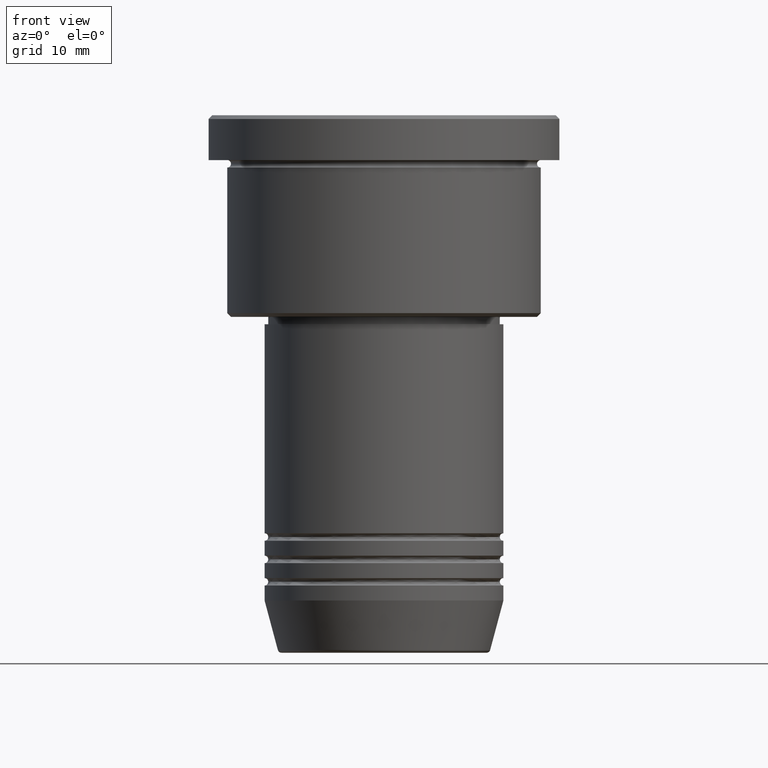
[diagram: clean part render]
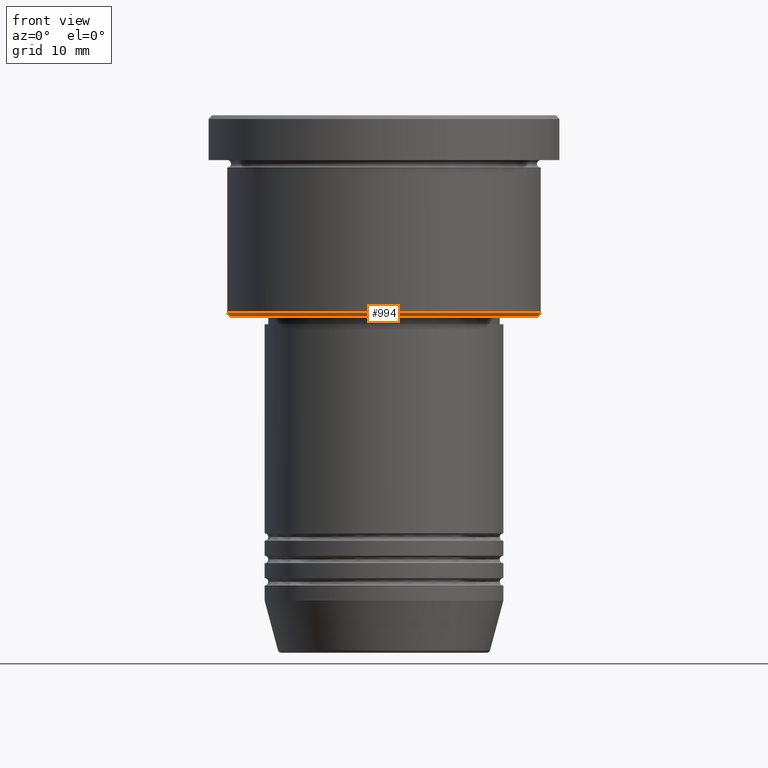
[diagram: same view with one face highlighted and labeled with its STEP entity id]
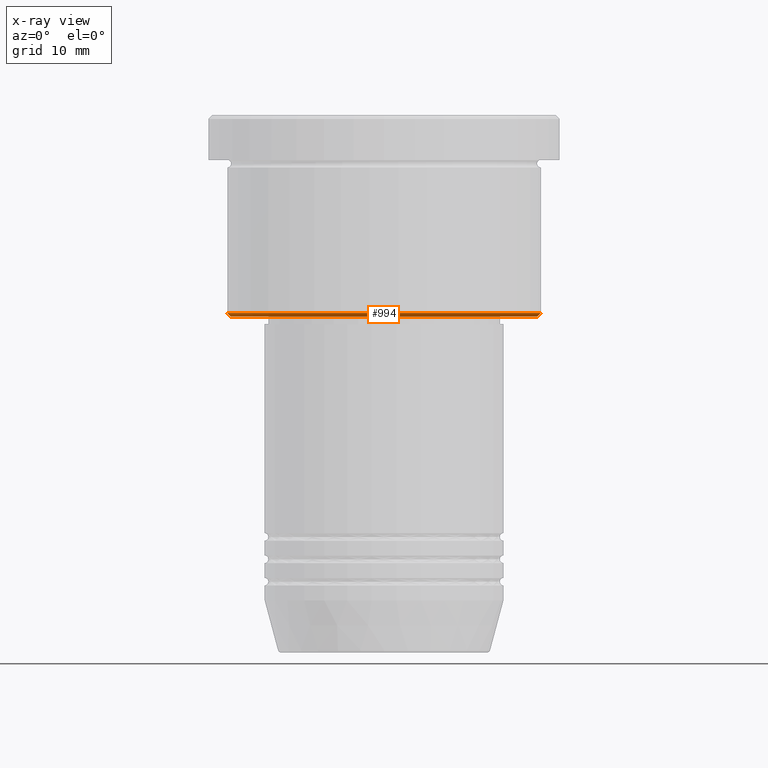
[diagram: x-ray of the same camera — body ghosted, the highlighted face saturated]
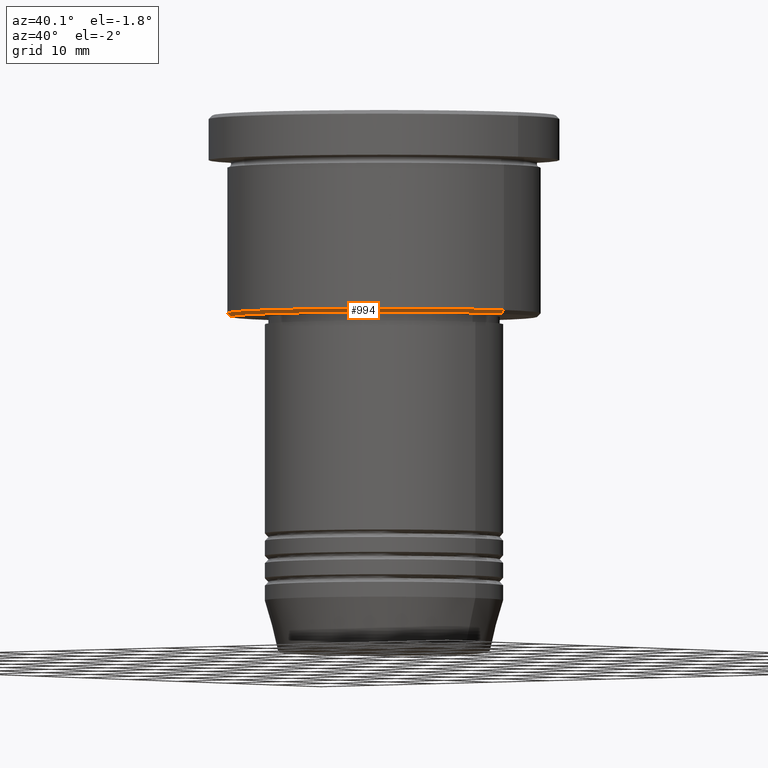
[diagram: same view with one face highlighted and labeled with its STEP entity id]
A machine part, front view. The second image highlights one B-rep face of the part: STEP entity #994.
The next image is the same camera in x-ray: the body ghosted, the highlighted face saturated — about 0% of this face is hidden behind the body in this view.
A second angle (auxiliary view) of the same face is appended — the face is thin or edge-on in the first view.
In plain terms, the highlighted conical surface has half-angle 45 deg.
Its self-contained STEP definition (entity closure, byte-faithful):
#43 = EDGE_CURVE ( 'NONE', #774, #1136, #782, .T. ) ;
#57 = CARTESIAN_POINT ( 'NONE',  ( 21.00000000000000000, 0.000000000000000000, -26.50000000000002132 ) ) ;
#121 = VECTOR ( 'NONE', #888, 1000.000000000000114 ) ;
#158 = CARTESIAN_POINT ( 'NONE',  ( -21.00000000000000000, 2.571758278209441661E-15, -26.50000000000002132 ) ) ;
#211 = ORIENTED_EDGE ( 'NONE', *, *, #43, .F. ) ;
#235 = VECTOR ( 'NONE', #889, 1000.000000000000114 ) ;
#272 = CARTESIAN_POINT ( 'NONE',  ( 20.50000000000001776, 0.000000000000000000, -27.00000000000000355 ) ) ;
#284 = CIRCLE ( 'NONE', #802, 20.50000000000001776 ) ;
#313 = EDGE_CURVE ( 'NONE', #680, #1101, #284, .T. ) ;
#324 = ORIENTED_EDGE ( 'NONE', *, *, #313, .F. ) ;
#455 = EDGE_CURVE ( 'NONE', #1101, #774, #1175, .T. ) ;
#493 = DIRECTION ( 'NONE',  ( -1.000000000000000000, 0.000000000000000000, 0.000000000000000000 ) ) ;
#502 = DIRECTION ( 'NONE',  ( 0.000000000000000000, 0.000000000000000000, -1.000000000000000000 ) ) ;
#509 = ORIENTED_EDGE ( 'NONE', *, *, #1103, .T. ) ;
#518 = AXIS2_PLACEMENT_3D ( 'NONE', #824, #553, #921 ) ;
#529 = CARTESIAN_POINT ( 'NONE',  ( 0.000000000000000000, 0.000000000000000000, -26.50000000000002132 ) ) ;
#553 = DIRECTION ( 'NONE',  ( -0.000000000000000000, -0.000000000000000000, 1.000000000000000000 ) ) ;
#624 = DIRECTION ( 'NONE',  ( -1.000000000000000000, 0.000000000000000000, 0.000000000000000000 ) ) ;
#648 = EDGE_LOOP ( 'NONE', ( #771, #324, #509, #211 ) ) ;
#680 = VERTEX_POINT ( 'NONE', #272 ) ;
#771 = ORIENTED_EDGE ( 'NONE', *, *, #455, .F. ) ;
#774 = VERTEX_POINT ( 'NONE', #850 ) ;
#776 = LINE ( 'NONE', #57, #121 ) ;
#782 = CIRCLE ( 'NONE', #862, 21.00000000000000000 ) ;
#789 = CARTESIAN_POINT ( 'NONE',  ( -20.50000000000001776, 2.541142108230759057E-15, -27.00000000000000355 ) ) ;
#802 = AXIS2_PLACEMENT_3D ( 'NONE', #837, #502, #493 ) ;
#808 = DIRECTION ( 'NONE',  ( -0.000000000000000000, -0.000000000000000000, 1.000000000000000000 ) ) ;
#810 = CARTESIAN_POINT ( 'NONE',  ( 21.00000000000000000, 0.000000000000000000, -26.50000000000002132 ) ) ;
#824 = CARTESIAN_POINT ( 'NONE',  ( 0.000000000000000000, 0.000000000000000000, -26.50000000000002132 ) ) ;
#830 = FACE_OUTER_BOUND ( 'NONE', #648, .T. ) ;
#837 = CARTESIAN_POINT ( 'NONE',  ( 0.000000000000000000, 0.000000000000000000, -27.00000000000000355 ) ) ;
#850 = CARTESIAN_POINT ( 'NONE',  ( -21.00000000000000000, 2.571758278209441661E-15, -26.50000000000002132 ) ) ;
#862 = AXIS2_PLACEMENT_3D ( 'NONE', #529, #808, #624 ) ;
#888 = DIRECTION ( 'NONE',  ( 0.7071067811865474617, 0.000000000000000000, 0.7071067811865474617 ) ) ;
#889 = DIRECTION ( 'NONE',  ( -0.7071067811865474617, 8.659560562354932858E-17, 0.7071067811865474617 ) ) ;
#921 = DIRECTION ( 'NONE',  ( 1.000000000000000000, 0.000000000000000000, 0.000000000000000000 ) ) ;
#994 = ADVANCED_FACE ( 'NONE', ( #830 ), #1087, .T. ) ;
#1087 = CONICAL_SURFACE ( 'NONE', #518, 21.00000000000000000, 0.7853981633974482790 ) ;
#1101 = VERTEX_POINT ( 'NONE', #789 ) ;
#1103 = EDGE_CURVE ( 'NONE', #680, #1136, #776, .T. ) ;
#1136 = VERTEX_POINT ( 'NONE', #810 ) ;
#1175 = LINE ( 'NONE', #158, #235 ) ;